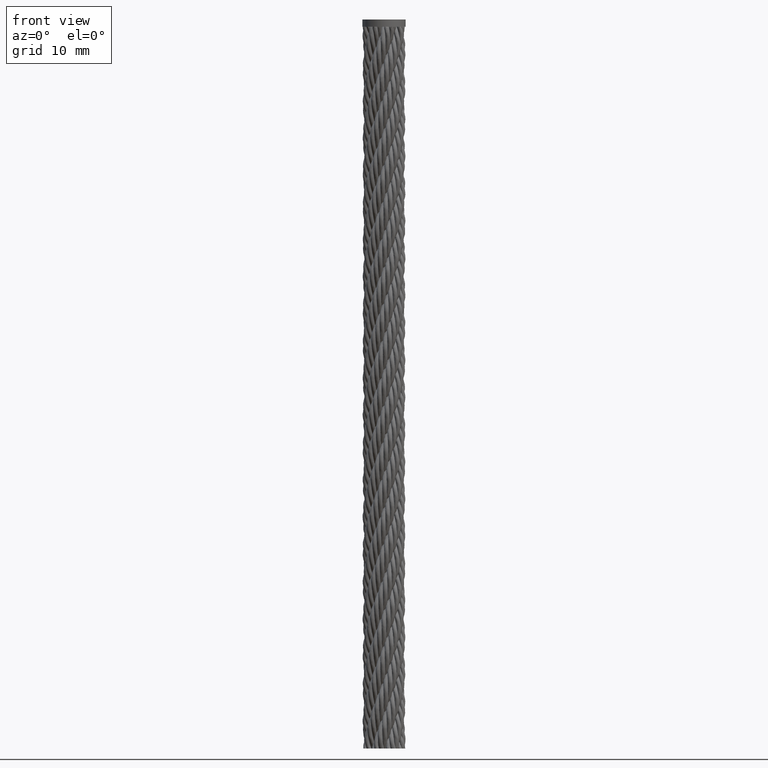
[diagram: clean part render]
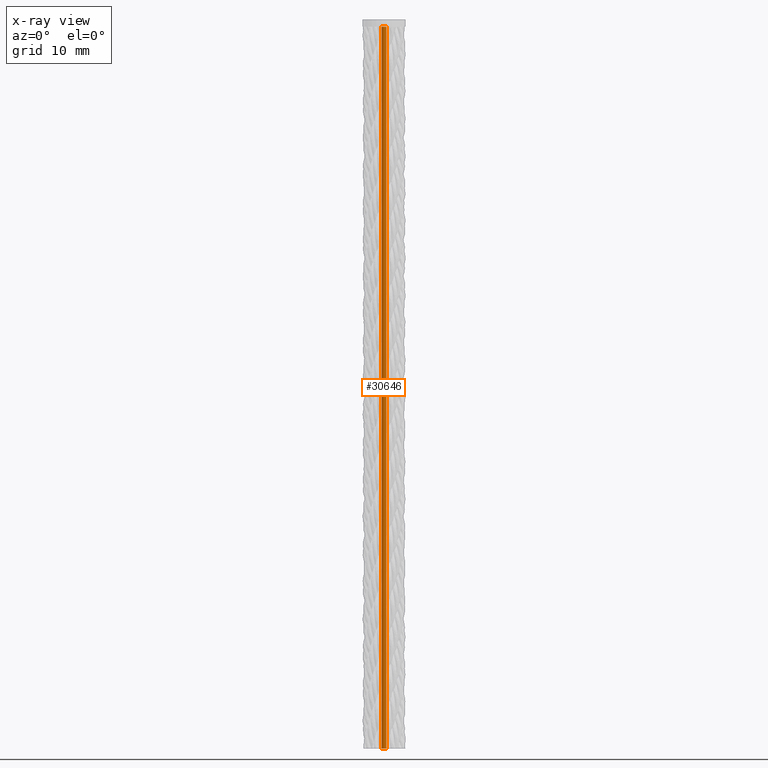
[diagram: x-ray — body ghosted, one internal face saturated and labeled with its STEP entity id]
A machine part, front view, then the same camera in x-ray: the body is ghosted and one INTERNAL B-rep face — a face not visible from any outside direction — is saturated and labeled: STEP entity #30646.
In plain terms, the highlighted cylindrical surface (bore or boss wall) has radius 0.3333 mm, axis along (0, 0, -1).
Its self-contained STEP definition (entity closure, byte-faithful):
#1813 = VERTEX_POINT ( 'NONE', #18264 ) ;
#3035 = AXIS2_PLACEMENT_3D ( 'NONE', #47727, #40159, #27819 ) ;
#4741 = EDGE_LOOP ( 'NONE', ( #29818 ) ) ;
#6251 = FACE_OUTER_BOUND ( 'NONE', #4741, .T. ) ;
#9745 = AXIS2_PLACEMENT_3D ( 'NONE', #16606, #12738, #44770 ) ;
#12738 = DIRECTION ( 'NONE',  ( 0.000000000000000000, 0.000000000000000000, -1.000000000000000000 ) ) ;
#14367 = VERTEX_POINT ( 'NONE', #34114 ) ;
#16606 = CARTESIAN_POINT ( 'NONE',  ( 0.000000000000000000, 0.000000000000000000, 0.000000000000000000 ) ) ;
#16927 = CIRCLE ( 'NONE', #47517, 0.3333333333333333703 ) ;
#18264 = CARTESIAN_POINT ( 'NONE',  ( 0.3333333333333333703, 0.000000000000000000, 0.000000000000000000 ) ) ;
#21389 = CYLINDRICAL_SURFACE ( 'NONE', #9745, 0.3333333333333333703 ) ;
#25116 = DIRECTION ( 'NONE',  ( 0.000000000000000000, 0.000000000000000000, 1.000000000000000000 ) ) ;
#25638 = CARTESIAN_POINT ( 'NONE',  ( 0.000000000000000000, 0.000000000000000000, -100.0000000000000000 ) ) ;
#27819 = DIRECTION ( 'NONE',  ( 1.000000000000000000, 0.000000000000000000, 0.000000000000000000 ) ) ;
#29818 = ORIENTED_EDGE ( 'NONE', *, *, #44310, .T. ) ;
#30646 = ADVANCED_FACE ( 'NONE', ( #6251, #46589 ), #21389, .T. ) ;
#30789 = CIRCLE ( 'NONE', #3035, 0.3333333333333333703 ) ;
#34114 = CARTESIAN_POINT ( 'NONE',  ( 0.3333333333333333703, 0.000000000000000000, -100.0000000000000000 ) ) ;
#35595 = EDGE_LOOP ( 'NONE', ( #39945 ) ) ;
#39945 = ORIENTED_EDGE ( 'NONE', *, *, #42629, .F. ) ;
#40159 = DIRECTION ( 'NONE',  ( 0.000000000000000000, 0.000000000000000000, 1.000000000000000000 ) ) ;
#42629 = EDGE_CURVE ( 'NONE', #1813, #1813, #30789, .T. ) ;
#44310 = EDGE_CURVE ( 'NONE', #14367, #14367, #16927, .T. ) ;
#44770 = DIRECTION ( 'NONE',  ( -1.000000000000000000, 0.000000000000000000, 0.000000000000000000 ) ) ;
#45522 = DIRECTION ( 'NONE',  ( 1.000000000000000000, 0.000000000000000000, 0.000000000000000000 ) ) ;
#46589 = FACE_OUTER_BOUND ( 'NONE', #35595, .T. ) ;
#47517 = AXIS2_PLACEMENT_3D ( 'NONE', #25638, #25116, #45522 ) ;
#47727 = CARTESIAN_POINT ( 'NONE',  ( 0.000000000000000000, 0.000000000000000000, 0.000000000000000000 ) ) ;